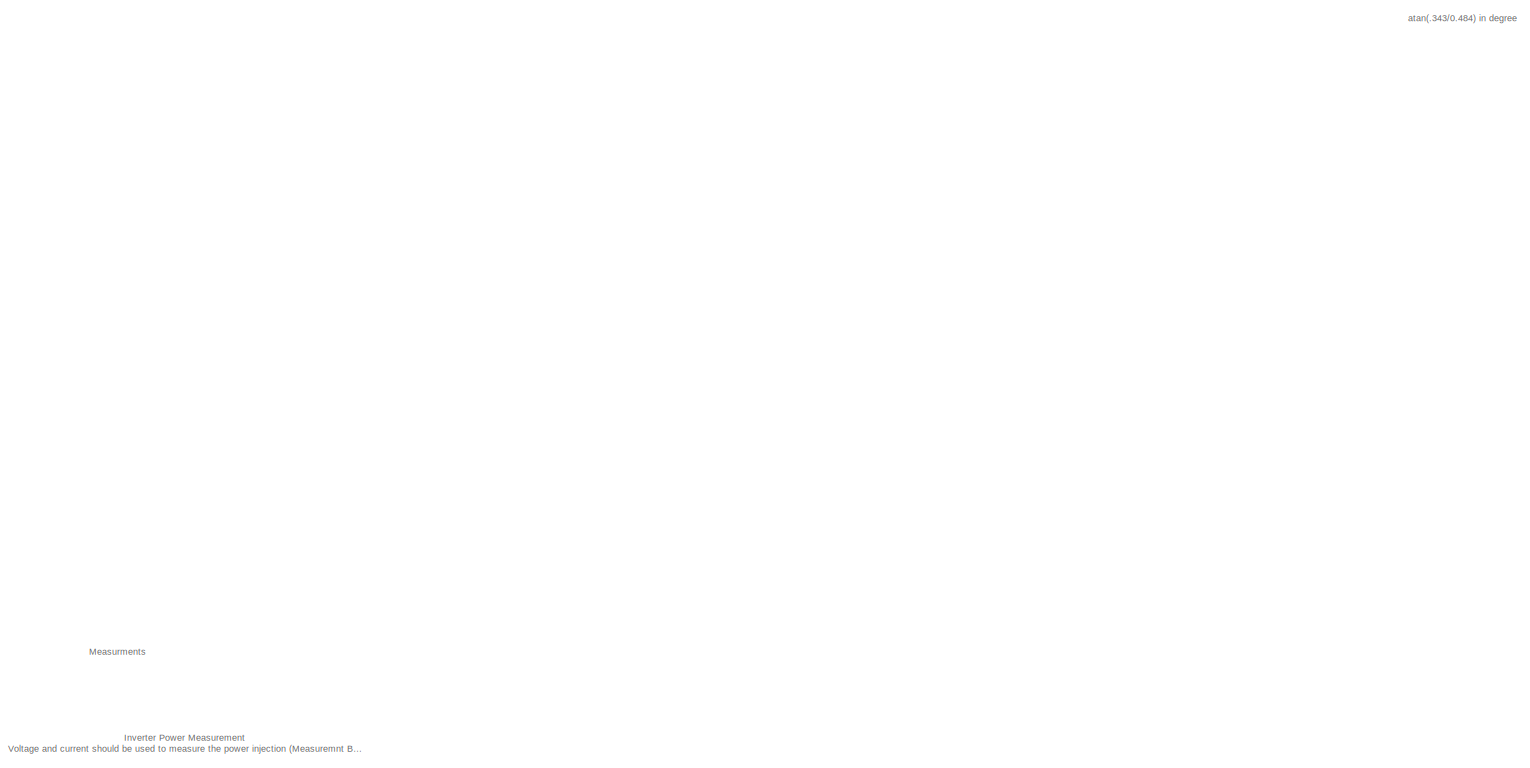
[diagram: root canvas - part 1/8, top center region]
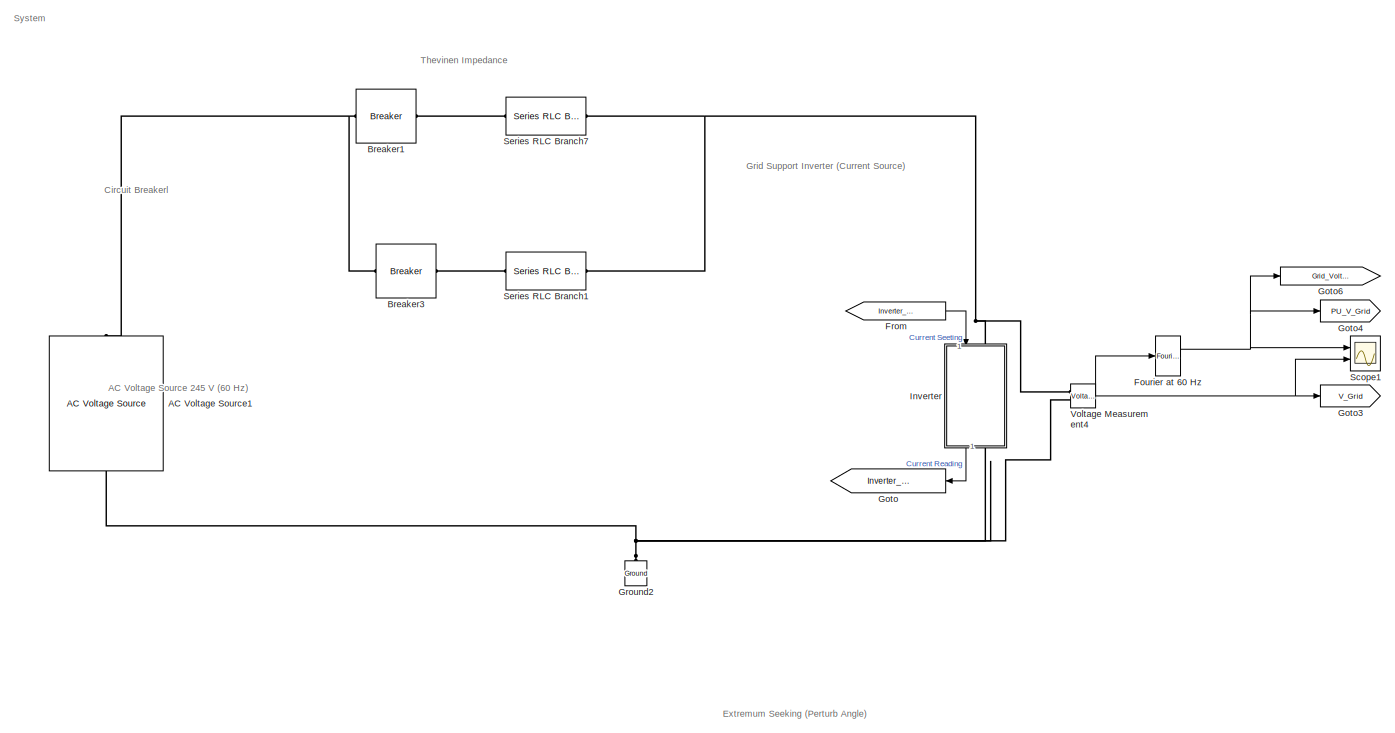
[diagram: root canvas - part 2/8, central region]
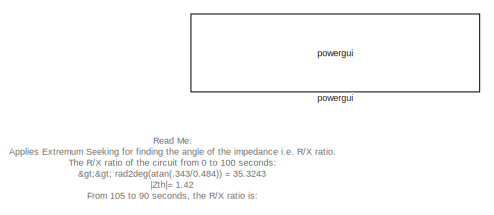
[diagram: root canvas - part 3/8, top left region]
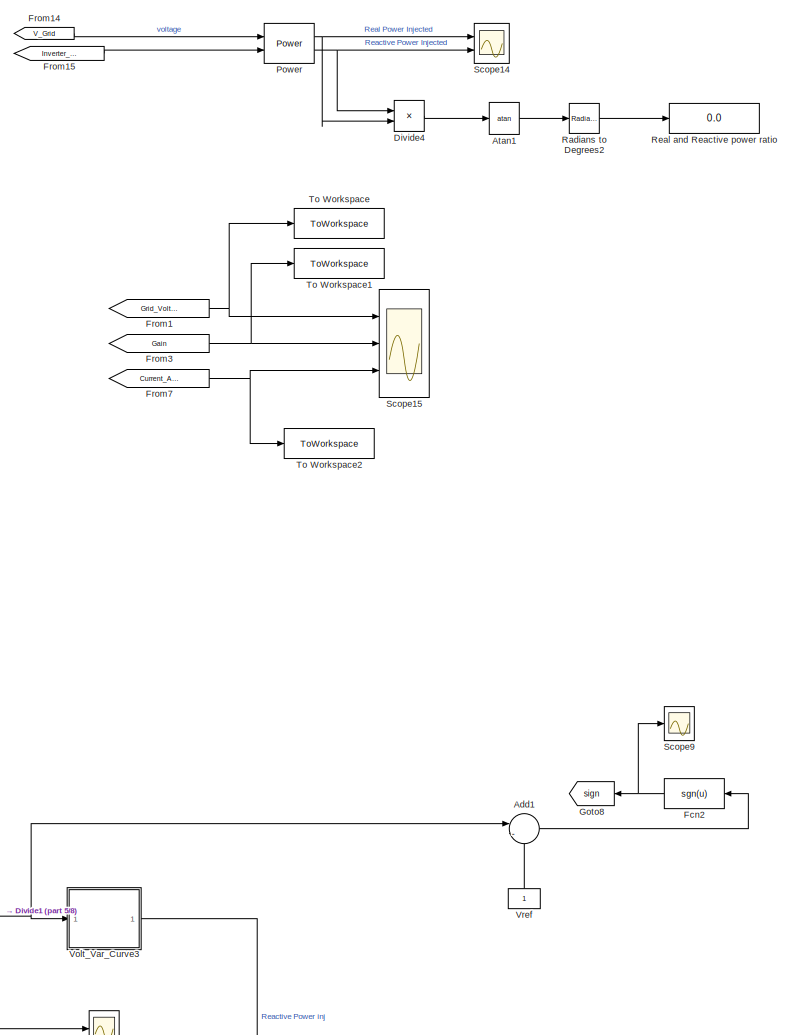
[diagram: root canvas - part 4/8, central region]
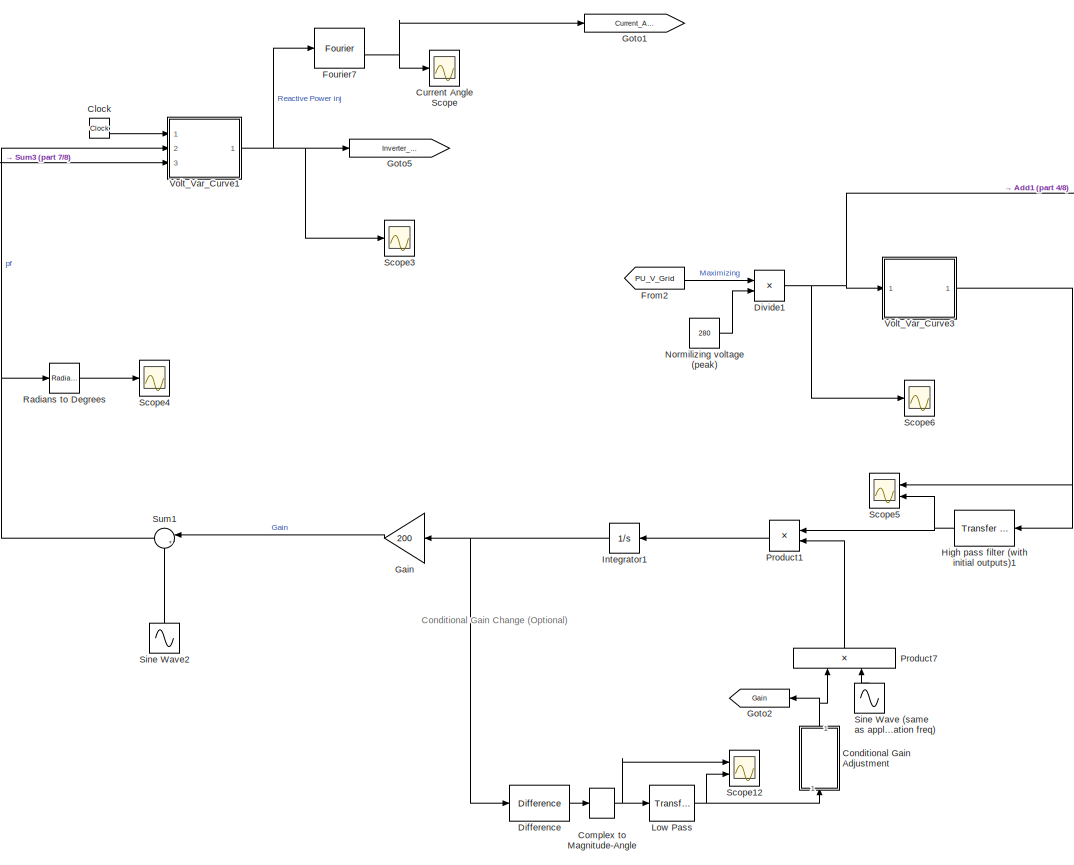
[diagram: root canvas - part 5/8, bottom center region]
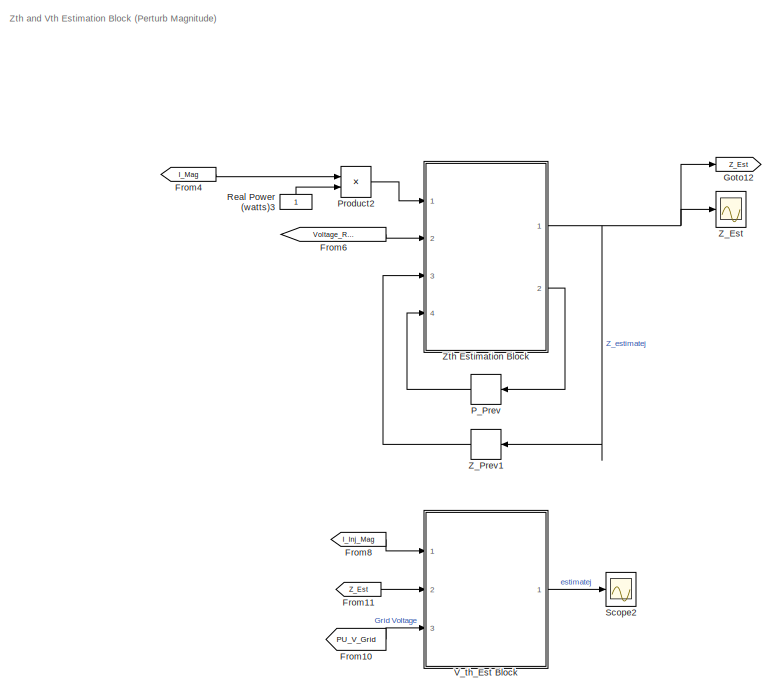
[diagram: root canvas - part 6/8, middle left region]
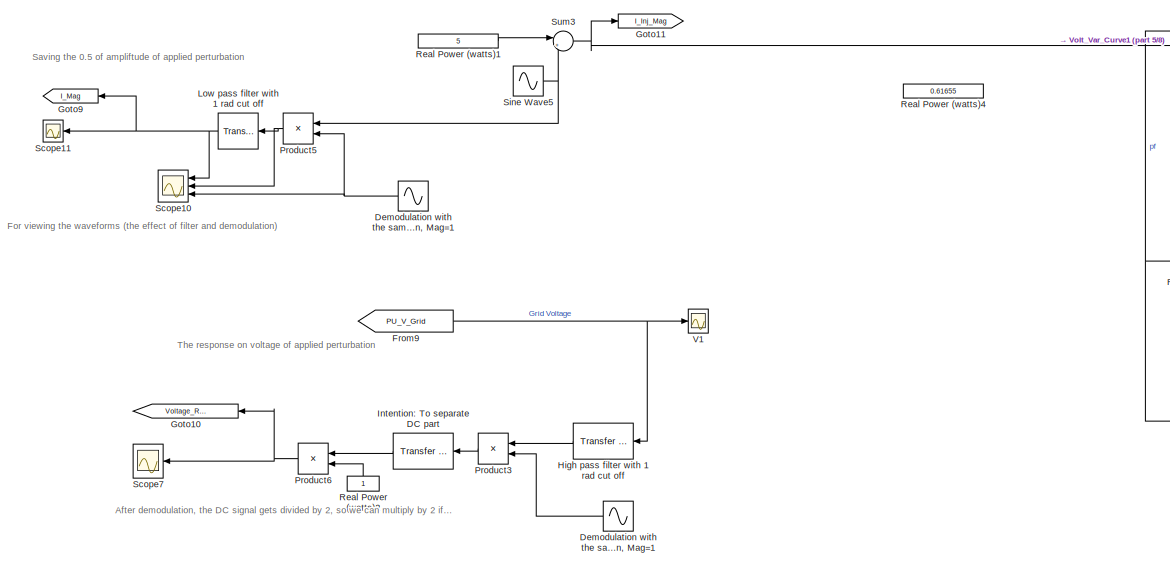
[diagram: root canvas - part 7/8, bottom left region]
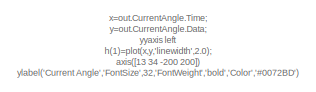
[diagram: root canvas - part 8/8, bottom right region]
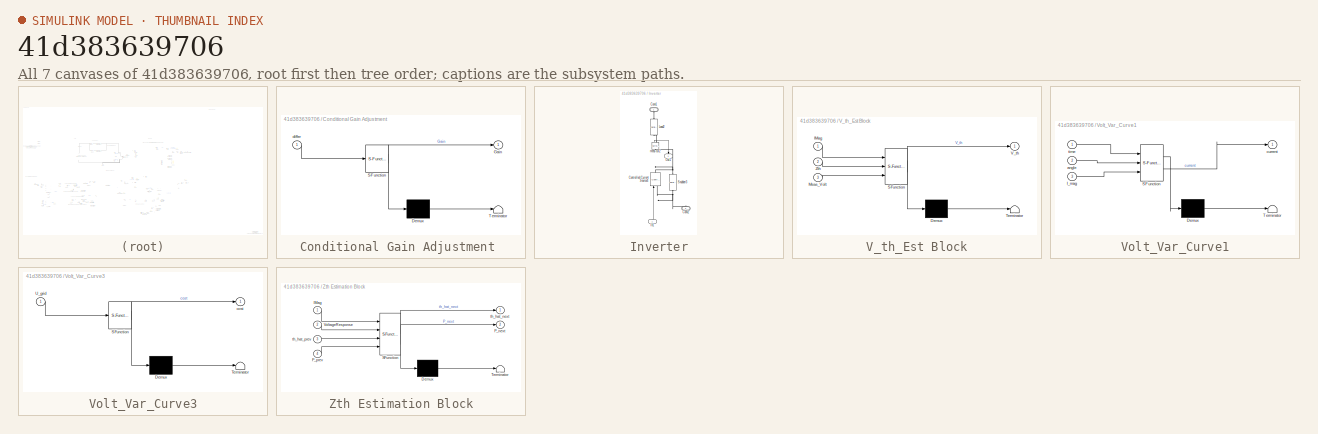
[diagram: thumbnail index - all 7 canvases of the model, root first then tree order]
MODEL slx_41d383639706
KIND model
CONFIG AbsTol = auto
CONFIG EnableMultiTasking = off
CONFIG FixedStep = 0.01
CONFIG MaxStep = 1
CONFIG MinStep = auto
CONFIG RelTol = 1e-4
CONFIG SampleTimeConstraint = Unconstrained
CONFIG SolverName = VariableStepAuto
CONFIG StartTime = 0.0
CONFIG StopTime = 300
BLOCK [Reference]  Intention: To separate DC part  REF=simulink_extras/Additional
Linear/Transfer Fcn
(with initial outputs)
  NameLocation = top
  Ports = [1, 1]
  SourceBlock = simulink_extras/Additional\nLinear/Transfer Fcn\n(with initial outputs)
  SourceProductBaseCode = SL
  SourceType = Transfer Function with Initial Outputs
BLOCK [Reference] AC Voltage Source1  REF=spsACVoltageSourceLib/AC Voltage Source
  Ports = [0, 0, 0, 0, 0, 1, 1]
  SourceBlock = spsACVoltageSourceLib/AC Voltage Source
  SourceProductBaseCode = PS
  SourceType = AC Voltage Source
BLOCK [Sum] Add1
  Inputs = |-+
  Ports = [2, 1]
BLOCK [Trigonometry] Atan1
  Operator = atan
  Ports = [1, 1]
BLOCK [Reference] Breaker1  REF=spsBreakerLib/Breaker
  Ports = [0, 0, 0, 0, 0, 1, 1]
  SourceBlock = spsBreakerLib/Breaker
  SourceProductBaseCode = PS
  SourceType = Breaker
BLOCK [Reference] Breaker3  REF=spsBreakerLib/Breaker
  Ports = [0, 0, 0, 0, 0, 1, 1]
  SourceBlock = spsBreakerLib/Breaker
  SourceProductBaseCode = PS
  SourceType = Breaker
BLOCK [Clock] Clock
BLOCK [ComplexToMagnitudeAngle] Complex to Magnitude-Angle
  Output = Magnitude
  Ports = [1, 1]
BLOCK [SubSystem] Conditional Gain Adjustment 
  ErrorFcn = Stateflow.Translate.translate
  NameLocation = right
  PermitHierarchicalResolution = ExplicitOnly
  Ports = [1, 1]
  RequestExecContextInheritance = off
  SFBlockType = MATLAB Function
  TreatAsAtomicUnit = on
BLOCK [Demux] Conditional Gain Adjustment / Demux 
  Outputs = 1
  Ports = [1, 1]
BLOCK [S-Function] Conditional Gain Adjustment / SFunction 
  EnableBusSupport = on
  FunctionName = sf_sfun
  PortCounts = [1 2]
  Ports = [1, 2]
  SFcnIsStateOwnerBlock = off
  SFunctionDeploymentMode = off
  Tag = Stateflow S-Function 3
BLOCK [Terminator] Conditional Gain Adjustment / Terminator 
BLOCK [Outport] Conditional Gain Adjustment /Gain
BLOCK [Inport] Conditional Gain Adjustment /differ
BLOCK [Scope] Current Angle Scope
  Floating = off
  NumInputPorts = 1
  Ports = [1]
  ScopeSpecificationString = Simulink.scopes.TimeScopeBlockCfg('CurrentConfiguration', extmgr.ConfigurationSet(extmgr.Configuration('Core','General UI',true),extmgr.Configuration('Core','Source UI',true),extmgr.Configuration('Sources','WiredSimulink',true,'DataLoggingVariableName','ScopeData1'),extmgr.Configuration('Visuals','Time Domain',true,'SerializedDisplays',{struct('MinYLimReal','-65.92612','MaxYLimReal','16.86496','YL...<+1843ch>
BLOCK [Sin] Demodulation with the same signal as applied parturbation, Mag=1
  Frequency = 10
  NameLocation = top
  Ports = [0, 1]
  SampleTime = 0
BLOCK [Sin] Demodulation with the same signal as applied parturbation, Mag=1 
  Frequency = 10
  NameLocation = top
  Ports = [0, 1]
  SampleTime = 0
BLOCK [Reference] Difference  REF=simulink/Discrete/Difference
  Ports = [1, 1]
  SourceBlock = simulink/Discrete/Difference
  SourceProductBaseCode = SL
  SourceType = Difference
BLOCK [Product] Divide1
  Inputs = */
  Ports = [2, 1]
BLOCK [Product] Divide4
  Inputs = */
  Ports = [2, 1]
BLOCK [Fcn] Fcn2
  Expr = sgn(u)
  NameLocation = top
BLOCK [Reference] Fourier at 60 Hz  REF=spsFourierLib/Fourier
  Ports = [1, 2]
  SourceBlock = spsFourierLib/Fourier
  SourceProductBaseCode = PS
  SourceType = Fourier
BLOCK [Reference] Fourier7  REF=spsFourierLib/Fourier
  Ports = [1, 2]
  SourceBlock = spsFourierLib/Fourier
  SourceProductBaseCode = PS
  SourceType = Fourier
BLOCK [From] From
  GotoTag = Inverter_Current
  TagVisibility = global
BLOCK [From] From1
  GotoTag = Grid_Voltage
  TagVisibility = global
BLOCK [From] From10
  GotoTag = PU_V_Grid
BLOCK [From] From11
  GotoTag = Z_Est
BLOCK [From] From14
  GotoTag = V_Grid
BLOCK [From] From15
  GotoTag = Inverter_read
BLOCK [From] From2
  GotoTag = PU_V_Grid
BLOCK [From] From3
  GotoTag = Gain
  NameLocation = top
  TagVisibility = global
BLOCK [From] From4
  GotoTag = I_Mag
  NameLocation = top
BLOCK [From] From6
  GotoTag = Voltage_Response
  NameLocation = top
BLOCK [From] From7
  GotoTag = Current_Angle
  TagVisibility = global
BLOCK [From] From8
  GotoTag = I_Inj_Mag
  NameLocation = top
BLOCK [From] From9
  GotoTag = PU_V_Grid
BLOCK [Gain] Gain
  Gain = 200
  NameLocation = top
BLOCK [Goto] Goto
  GotoTag = Inverter_read
  NameLocation = top
BLOCK [Goto] Goto1
  GotoTag = Current_Angle
  TagVisibility = global
BLOCK [Goto] Goto10
  GotoTag = Voltage_Response
  NameLocation = top
BLOCK [Goto] Goto11
  GotoTag = I_Inj_Mag
BLOCK [Goto] Goto12
  GotoTag = Z_Est
BLOCK [Goto] Goto2
  GotoTag = Gain
  NameLocation = top
  TagVisibility = global
BLOCK [Goto] Goto3
  GotoTag = V_Grid
BLOCK [Goto] Goto4
  GotoTag = PU_V_Grid
BLOCK [Goto] Goto5
  GotoTag = Inverter_Current
  TagVisibility = global
BLOCK [Goto] Goto6
  GotoTag = Grid_Voltage
  TagVisibility = global
BLOCK [Goto] Goto8
  GotoTag = sign
  TagVisibility = global
BLOCK [Goto] Goto9
  GotoTag = I_Mag
  NameLocation = top
BLOCK [Reference] Ground2  REF=spsGroundLib/Ground
  NameLocation = right
  Ports = [0, 0, 0, 0, 0, 1]
  SourceBlock = spsGroundLib/Ground
  SourceProductBaseCode = PS
  SourceType = Ground
BLOCK [Reference] High pass filter (with initial outputs)1  REF=simulink_extras/Additional
Linear/Transfer Fcn
(with initial outputs)
  NameLocation = top
  Ports = [1, 1]
  SourceBlock = simulink_extras/Additional\nLinear/Transfer Fcn\n(with initial outputs)
  SourceProductBaseCode = SL
  SourceType = Transfer Function with Initial Outputs
BLOCK [Reference] High pass filter with 1 rad cut off  REF=simulink_extras/Additional
Linear/Transfer Fcn
(with initial outputs)
  NameLocation = top
  Ports = [1, 1]
  SourceBlock = simulink_extras/Additional\nLinear/Transfer Fcn\n(with initial outputs)
  SourceProductBaseCode = SL
  SourceType = Transfer Function with Initial Outputs
BLOCK [Integrator] Integrator1
  NameLocation = top
  Ports = [1, 1]
BLOCK [SubSystem] Inverter
  NameLocation = right
  Ports = [1, 1, 0, 0, 0, 1, 1]
  RequestExecContextInheritance = off
BLOCK [PMIOPort] Inverter/Conn1
  NameLocation = right
  Side = Left
BLOCK [PMIOPort] Inverter/Conn2
  NameLocation = right
  Port = 2
  Side = Right
BLOCK [Reference] Inverter/Controlled Current Source4  REF=spsControlledCurrentSourceLib/Controlled Current Source
  NameLocation = right
  Ports = [1, 0, 0, 0, 0, 1, 1]
  SourceBlock = spsControlledCurrentSourceLib/Controlled Current Source
  SourceProductBaseCode = PS
  SourceType = Controlled Current Source
BLOCK [Inport] Inverter/In1
  NameLocation = right
BLOCK [Reference] Inverter/Load2  REF=spsSeriesRLCBranchLib/Series RLC Branch
  NameLocation = right
  Ports = [0, 0, 0, 0, 0, 1, 1]
  SourceBlock = spsSeriesRLCBranchLib/Series RLC Branch
  SourceProductBaseCode = PS
  SourceType = Series RLC Branch
BLOCK [Outport] Inverter/Out1
  NameLocation = right
BLOCK [Reference] Inverter/Snubber3  REF=spsSeriesRLCBranchLib/Series RLC Branch
  NameLocation = right
  Ports = [0, 0, 0, 0, 0, 1, 1]
  SourceBlock = spsSeriesRLCBranchLib/Series RLC Branch
  SourceProductBaseCode = PS
  SourceType = Series RLC Branch
BLOCK [Reference] Inverter/meas cur2  REF=spsCurrentMeasurementLib/Current Measurement
  NameLocation = left
  Ports = [0, 1, 0, 0, 0, 1, 1]
  SourceBlock = spsCurrentMeasurementLib/Current Measurement
  SourceProductBaseCode = PS
  SourceType = Current Measurement
BLOCK [Reference] Low Pass  REF=simulink_extras/Additional
Linear/Transfer Fcn
(with initial outputs)
  Ports = [1, 1]
  SourceBlock = simulink_extras/Additional\nLinear/Transfer Fcn\n(with initial outputs)
  SourceProductBaseCode = SL
  SourceType = Transfer Function with Initial Outputs
BLOCK [Reference] Low pass filter with 1 rad cut off  REF=simulink_extras/Additional
Linear/Transfer Fcn
(with initial outputs)
  NameLocation = top
  Ports = [1, 1]
  SourceBlock = simulink_extras/Additional\nLinear/Transfer Fcn\n(with initial outputs)
  SourceProductBaseCode = SL
  SourceType = Transfer Function with Initial Outputs
BLOCK [Constant] Normilizing voltage (peak)
  Value = 280
BLOCK [Memory] P_Prev
  InitialCondition = 0.1
  NameLocation = top
BLOCK [Reference] Power  REF=spsPowerLib/Power
  Ports = [2, 2]
  SourceBlock = spsPowerLib/Power
  SourceProductBaseCode = PS
  SourceType = Power
BLOCK [Product] Product1
  NameLocation = top
  Ports = [2, 1]
BLOCK [Product] Product2
  Ports = [2, 1]
BLOCK [Product] Product3
  NameLocation = top
  Ports = [2, 1]
BLOCK [Product] Product5
  NameLocation = top
  Ports = [2, 1]
BLOCK [Product] Product6
  NameLocation = top
  Ports = [2, 1]
BLOCK [Product] Product7
  NameLocation = right
  Ports = [2, 1]
BLOCK [Reference] Radians to Degrees  REF=simulink_extras/Transformations/Radians
to Degrees
  Ports = [1, 1]
  SourceBlock = simulink_extras/Transformations/Radians\nto Degrees
  SourceProductBaseCode = SL
  SourceType = RadiansToDegrees
BLOCK [Reference] Radians to Degrees2  REF=simulink_extras/Transformations/Radians
to Degrees
  Ports = [1, 1]
  SourceBlock = simulink_extras/Transformations/Radians\nto Degrees
  SourceProductBaseCode = SL
  SourceType = RadiansToDegrees
BLOCK [Constant] Real Power (watts)1
  NameLocation = top
  Value = 5
BLOCK [Constant] Real Power (watts)2
  NameLocation = left
BLOCK [Constant] Real Power (watts)3
  NameLocation = left
BLOCK [Constant] Real Power (watts)4
  NameLocation = top
  Value = 0.61655
BLOCK [Display] Real and Reactive power ratio 
  Decimation = 1
  Ports = [1]
BLOCK [Scope] Scope1
  Floating = off
  NumInputPorts = 2
  Ports = [2]
  ScopeSpecificationString = Simulink.scopes.TimeScopeBlockCfg('CurrentConfiguration', extmgr.ConfigurationSet(extmgr.Configuration('Core','General UI',true),extmgr.Configuration('Core','Source UI',true),extmgr.Configuration('Sources','WiredSimulink',true,'DataLoggingVariableName','ScopeData2'),extmgr.Configuration('Visuals','Time Domain',true,'SerializedDisplays',{struct('MinYLimReal','-31.52921','MaxYLimReal','283.76287','Y...<+2068ch>
BLOCK [Scope] Scope10
  Floating = off
  NameLocation = top
  NumInputPorts = 3
  Ports = [3]
  ScopeSpecificationString = Simulink.scopes.TimeScopeBlockCfg('CurrentConfiguration', extmgr.ConfigurationSet(extmgr.Configuration('Core','General UI',true),extmgr.Configuration('Core','Source UI',true),extmgr.Configuration('Sources','WiredSimulink',true,'DataLoggingVariableName','ScopeData5'),extmgr.Configuration('Visuals','Time Domain',true,'SerializedDisplays',{struct('MinYLimReal','-1.25','MaxYLimReal','1.25','YLabelReal...<+1423ch>
BLOCK [Scope] Scope11
  Floating = off
  NameLocation = top
  NumInputPorts = 1
  Ports = [1]
  ScopeSpecificationString = Simulink.scopes.TimeScopeBlockCfg('CurrentConfiguration', extmgr.ConfigurationSet(extmgr.Configuration('Core','General UI',true),extmgr.Configuration('Core','Source UI',true),extmgr.Configuration('Sources','WiredSimulink',true,'DataLoggingVariableName','IMag','DataLogging',true,'DataLoggingSaveFormat','StructureWithTime'),extmgr.Configuration('Visuals','Time Domain',true,'SerializedDisplays',{stru...<+1531ch>
BLOCK [Scope] Scope12
  Floating = off
  NumInputPorts = 2
  Ports = [2]
  ScopeSpecificationString = Simulink.scopes.TimeScopeBlockCfg('CurrentConfiguration', extmgr.ConfigurationSet(extmgr.Configuration('Core','General UI',true),extmgr.Configuration('Core','Source UI',true),extmgr.Configuration('Sources','WiredSimulink',true,'DataLoggingVariableName','ScopeData4'),extmgr.Configuration('Visuals','Time Domain',true,'SerializedDisplays',{struct('MinYLimReal','-0.02547','MaxYLimReal','0.22926','YLab...<+2044ch>
BLOCK [Scope] Scope14
  Floating = off
  NumInputPorts = 2
  Ports = [2]
  ScopeSpecificationString = Simulink.scopes.TimeScopeBlockCfg('CurrentConfiguration', extmgr.ConfigurationSet(extmgr.Configuration('Core','General UI',true),extmgr.Configuration('Core','Source UI',true),extmgr.Configuration('Sources','WiredSimulink',true,'DataLoggingVariableName','ScopeData13'),extmgr.Configuration('Visuals','Time Domain',true,'SerializedDisplays',{struct('MinYLimReal','-773.11191','MaxYLimReal','787.54432',...<+2195ch>
BLOCK [Scope] Scope15
  Floating = off
  NumInputPorts = 3
  Ports = [3]
  ScopeSpecificationString = Simulink.scopes.TimeScopeBlockCfg('CurrentConfiguration', extmgr.ConfigurationSet(extmgr.Configuration('Core','General UI',true),extmgr.Configuration('Core','Source UI',true),extmgr.Configuration('Sources','WiredSimulink',true,'DataLoggingVariableName','ScopeData1'),extmgr.Configuration('Visuals','Time Domain',true,'SerializedDisplays',{struct('MinYLimReal','235.08047','MaxYLimReal','260.00467','Y...<+2747ch>
BLOCK [Scope] Scope2
  Floating = off
  NumInputPorts = 1
  Ports = [1]
  ScopeSpecificationString = Simulink.scopes.TimeScopeBlockCfg('CurrentConfiguration', extmgr.ConfigurationSet(extmgr.Configuration('Core','General UI',true),extmgr.Configuration('Core','Source UI',true),extmgr.Configuration('Sources','WiredSimulink',true,'DataLoggingVariableName','ScopeData1','DataLogging',true,'DataLoggingSaveFormat','StructureWithTime'),extmgr.Configuration('Visuals','Time Domain',true,'SerializedDisplays'...<+1870ch>
BLOCK [Scope] Scope3
  Floating = off
  NumInputPorts = 1
  Ports = [1]
  ScopeSpecificationString = Simulink.scopes.TimeScopeBlockCfg('CurrentConfiguration', extmgr.ConfigurationSet(extmgr.Configuration('Core','General UI',true),extmgr.Configuration('Core','Source UI',true),extmgr.Configuration('Sources','WiredSimulink',true,'DataLoggingVariableName','ScopeData4'),extmgr.Configuration('Visuals','Time Domain',true,'SerializedDisplays',{struct('MinYLimReal','-17.5157','MaxYLimReal','17.58763','YLa...<+1482ch>
BLOCK [Scope] Scope4
  Floating = off
  NumInputPorts = 1
  Ports = [1]
  ScopeSpecificationString = Simulink.scopes.TimeScopeBlockCfg('CurrentConfiguration', extmgr.ConfigurationSet(extmgr.Configuration('Core','General UI',true),extmgr.Configuration('Core','Source UI',true),extmgr.Configuration('Sources','WiredSimulink',true,'DataLoggingVariableName','ScopeData1'),extmgr.Configuration('Visuals','Time Domain',true,'SerializedDisplays',{struct('MinYLimReal','-526.89981','MaxYLimReal','4742.09827',...<+1497ch>
BLOCK [Scope] Scope5
  Floating = off
  NameLocation = top
  NumInputPorts = 2
  Ports = [2]
  ScopeSpecificationString = Simulink.scopes.TimeScopeBlockCfg('CurrentConfiguration', extmgr.ConfigurationSet(extmgr.Configuration('Core','General UI',true),extmgr.Configuration('Core','Source UI',true),extmgr.Configuration('Sources','WiredSimulink',true,'DataLoggingVariableName','ScopeData1'),extmgr.Configuration('Visuals','Time Domain',true,'SerializedDisplays',{struct('MinYLimReal','0.87803','MaxYLimReal','0.91181','YLabe...<+2158ch>
BLOCK [Scope] Scope6
  Floating = off
  NumInputPorts = 1
  Ports = [1]
  ScopeSpecificationString = Simulink.scopes.TimeScopeBlockCfg('CurrentConfiguration', extmgr.ConfigurationSet(extmgr.Configuration('Core','General UI',true),extmgr.Configuration('Core','Source UI',true),extmgr.Configuration('Sources','WiredSimulink',true,'DataLoggingVariableName','ScopeData1'),extmgr.Configuration('Visuals','Time Domain',true,'SerializedDisplays',{struct('MinYLimReal','-526.89981','MaxYLimReal','4742.09827',...<+1497ch>
BLOCK [Scope] Scope7
  Floating = off
  NameLocation = top
  NumInputPorts = 1
  Ports = [1]
  ScopeSpecificationString = Simulink.scopes.TimeScopeBlockCfg('CurrentConfiguration', extmgr.ConfigurationSet(extmgr.Configuration('Core','General UI',true),extmgr.Configuration('Core','Source UI',true),extmgr.Configuration('Sources','WiredSimulink',true,'DataLoggingVariableName','VoltageResponse','DataLogging',true,'DataLoggingSaveFormat','StructureWithTime'),extmgr.Configuration('Visuals','Time Domain',true,'SerializedDisp...<+1534ch>
BLOCK [Scope] Scope9
  Floating = off
  NumInputPorts = 1
  Ports = [1]
  ScopeSpecificationString = Simulink.scopes.TimeScopeBlockCfg('CurrentConfiguration', extmgr.ConfigurationSet(extmgr.Configuration('Core','General UI',true),extmgr.Configuration('Core','Source UI',true),extmgr.Configuration('Sources','WiredSimulink',true,'DataLoggingVariableName','ScopeData2'),extmgr.Configuration('Visuals','Time Domain',true,'SerializedDisplays',{struct('MinYLimReal','-1.1','MaxYLimReal','-0.9','YLabelReal'...<+1417ch>
BLOCK [Reference] Series RLC Branch1  REF=spsSeriesRLCBranchLib/Series RLC Branch
  Ports = [0, 0, 0, 0, 0, 1, 1]
  SourceBlock = spsSeriesRLCBranchLib/Series RLC Branch
  SourceProductBaseCode = PS
  SourceType = Series RLC Branch
BLOCK [Reference] Series RLC Branch7  REF=spsSeriesRLCBranchLib/Series RLC Branch
  Ports = [0, 0, 0, 0, 0, 1, 1]
  SourceBlock = spsSeriesRLCBranchLib/Series RLC Branch
  SourceProductBaseCode = PS
  SourceType = Series RLC Branch
BLOCK [Sin] Sine Wave (same as applied perturbation freq)
  Frequency = 5
  NameLocation = right
  Ports = [0, 1]
  SampleTime = 0
BLOCK [Sin] Sine Wave2
  Amplitude = 0.01
  Frequency = 5
  NameLocation = right
  Ports = [0, 1]
  SampleTime = 0
BLOCK [Sin] Sine Wave5
  Amplitude = 0.005
  Frequency = 10
  Ports = [0, 1]
  SampleTime = 0
BLOCK [Sum] Sum1
  Inputs = |++
  NameLocation = top
  Ports = [2, 1]
BLOCK [Sum] Sum3
  Inputs = |++
  Ports = [2, 1]
BLOCK [ToWorkspace] To Workspace
  FixptAsFi = on
  MaxDataPoints = inf
  Ports = [1]
  SampleTime = -1
  SaveFormat = Timeseries
  VariableName = voltage
BLOCK [ToWorkspace] To Workspace1
  FixptAsFi = on
  MaxDataPoints = inf
  Ports = [1]
  SampleTime = -1
  SaveFormat = Timeseries
  VariableName = Gain
BLOCK [ToWorkspace] To Workspace2
  FixptAsFi = on
  MaxDataPoints = inf
  Ports = [1]
  SampleTime = -1
  SaveFormat = Timeseries
  VariableName = CurrentAngle
BLOCK [Scope] V1
  Floating = off
  NumInputPorts = 1
  Ports = [1]
  ScopeSpecificationString = Simulink.scopes.TimeScopeBlockCfg('CurrentConfiguration', extmgr.ConfigurationSet(extmgr.Configuration('Core','General UI',true),extmgr.Configuration('Core','Source UI',true),extmgr.Configuration('Sources','WiredSimulink',true,'DataLoggingSaveFormat','StructureWithTime','DataLoggingDecimation','1','DataLoggingDecimateData',true,'DataLoggingVariableName','ScopeData7'),extmgr.Configuration('Visuals'...<+1656ch>
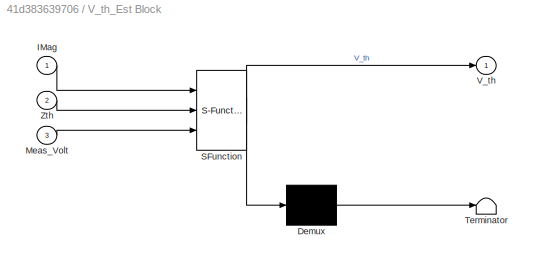
BLOCK [SubSystem] V_th_Est Block
  ErrorFcn = Stateflow.Translate.translate
  PermitHierarchicalResolution = ExplicitOnly
  Ports = [3, 1]
  RequestExecContextInheritance = off
  SFBlockType = MATLAB Function
  TreatAsAtomicUnit = on
BLOCK [Demux] V_th_Est Block/ Demux 
  Outputs = 1
  Ports = [1, 1]
BLOCK [S-Function] V_th_Est Block/ SFunction 
  EnableBusSupport = on
  FunctionName = sf_sfun
  PortCounts = [3 2]
  Ports = [3, 2]
  SFcnIsStateOwnerBlock = off
  SFunctionDeploymentMode = off
  Tag = Stateflow S-Function 5
BLOCK [Terminator] V_th_Est Block/ Terminator 
BLOCK [Inport] V_th_Est Block/IMag
BLOCK [Inport] V_th_Est Block/Meas_Volt
  Port = 3
BLOCK [Outport] V_th_Est Block/V_th
BLOCK [Inport] V_th_Est Block/Zth
  Port = 2
BLOCK [SubSystem] Volt_Var_Curve1
  ErrorFcn = Stateflow.Translate.translate
  PermitHierarchicalResolution = ExplicitOnly
  Ports = [3, 1]
  RequestExecContextInheritance = off
  SFBlockType = MATLAB Function
  TreatAsAtomicUnit = on
BLOCK [Demux] Volt_Var_Curve1/ Demux 
  Outputs = 1
  Ports = [1, 1]
BLOCK [S-Function] Volt_Var_Curve1/ SFunction 
  EnableBusSupport = on
  FunctionName = sf_sfun
  PortCounts = [3 2]
  Ports = [3, 2]
  SFcnIsStateOwnerBlock = off
  SFunctionDeploymentMode = off
  Tag = Stateflow S-Function 1
BLOCK [Terminator] Volt_Var_Curve1/ Terminator 
BLOCK [Inport] Volt_Var_Curve1/I_mag
  Port = 3
BLOCK [Inport] Volt_Var_Curve1/angle
  Port = 2
BLOCK [Outport] Volt_Var_Curve1/current
BLOCK [Inport] Volt_Var_Curve1/time
BLOCK [SubSystem] Volt_Var_Curve3
  ErrorFcn = Stateflow.Translate.translate
  PermitHierarchicalResolution = ExplicitOnly
  Ports = [1, 1]
  RequestExecContextInheritance = off
  SFBlockType = MATLAB Function
  TreatAsAtomicUnit = on
BLOCK [Demux] Volt_Var_Curve3/ Demux 
  Outputs = 1
  Ports = [1, 1]
BLOCK [S-Function] Volt_Var_Curve3/ SFunction 
  EnableBusSupport = on
  FunctionName = sf_sfun
  PortCounts = [1 2]
  Ports = [1, 2]
  SFcnIsStateOwnerBlock = off
  SFunctionDeploymentMode = off
  Tag = Stateflow S-Function 4
BLOCK [Terminator] Volt_Var_Curve3/ Terminator 
BLOCK [Inport] Volt_Var_Curve3/U_grid
BLOCK [Outport] Volt_Var_Curve3/cost
BLOCK [Reference] Voltage Measurement4  REF=spsVoltageMeasurementLib/Voltage Measurement
  Ports = [0, 1, 0, 0, 0, 2]
  SourceBlock = spsVoltageMeasurementLib/Voltage Measurement
  SourceProductBaseCode = PS
  SourceType = Voltage Measurement
BLOCK [Constant] Vref
  NameLocation = left
BLOCK [Scope] Z_Est
  Floating = off
  NumInputPorts = 1
  Ports = [1]
  ScopeSpecificationString = Simulink.scopes.TimeScopeBlockCfg('CurrentConfiguration', extmgr.ConfigurationSet(extmgr.Configuration('Core','General UI',true),extmgr.Configuration('Core','Source UI',true),extmgr.Configuration('Sources','WiredSimulink',true,'DataLoggingVariableName','ScopeData1'),extmgr.Configuration('Visuals','Time Domain',true,'SerializedDisplays',{struct('MinYLimReal','-48.46705','MaxYLimReal','23.38011','YL...<+1761ch>
BLOCK [Memory] Z_Prev1
  InitialCondition = 0.1
  NameLocation = top
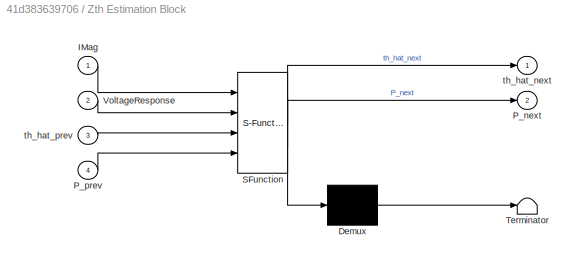
BLOCK [SubSystem] Zth Estimation Block
  ErrorFcn = Stateflow.Translate.translate
  PermitHierarchicalResolution = ExplicitOnly
  Ports = [4, 2]
  RequestExecContextInheritance = off
  SFBlockType = MATLAB Function
  TreatAsAtomicUnit = on
BLOCK [Demux] Zth Estimation Block/ Demux 
  Outputs = 1
  Ports = [1, 1]
BLOCK [S-Function] Zth Estimation Block/ SFunction 
  EnableBusSupport = on
  FunctionName = sf_sfun
  PortCounts = [4 3]
  Ports = [4, 3]
  SFcnIsStateOwnerBlock = off
  SFunctionDeploymentMode = off
  Tag = Stateflow S-Function 2
BLOCK [Terminator] Zth Estimation Block/ Terminator 
BLOCK [Inport] Zth Estimation Block/IMag
BLOCK [Outport] Zth Estimation Block/P_next
  Port = 2
BLOCK [Inport] Zth Estimation Block/P_prev
  Port = 4
BLOCK [Inport] Zth Estimation Block/VoltageResponse
  Port = 2
BLOCK [Outport] Zth Estimation Block/th_hat_next
BLOCK [Inport] Zth Estimation Block/th_hat_prev
  Port = 3
BLOCK [Reference] powergui  REF=spspowerguiLib/powergui
  Ports = []
  SourceBlock = spspowerguiLib/powergui
  SourceProductBaseCode = PS
  SourceType = PSB option menu block
ANNOTATION (root): x=out.CurrentAngle.Time; y=out.CurrentAngle.Data; yyaxis left h(1)=plot(x,y,'linewidth',2.0); axis([13 34 -200 200]) ylabel('Current Angle','FontSize',32,'FontWeight','bold','Color','#0072BD') ax = gca; ax.XGrid = 'off'; ax.YGrid = 'on'; ax.FontSize = 32; xticks([15 18 21 24 27 30 32]) yticks([ -180 -60 -30 0 180]) yyaxis right x=out.Gain.Time; y=out.Gain.Data; h(2)=plot(x,y,'linewidth',2.0); axis...<+234ch>
ANNOTATION (root): Inverter Power Measurement Voltage and current should be used to measure the power injection (Measuremnt Blocks are different here then phasor blocks)
ANNOTATION (root): Read Me: Applies Extremum Seeking for finding the angle of the impedance i.e. R/X ratio. The R/X ratio of the circuit from 0 to 100 seconds: >> rad2deg(atan(.343/0.484)) = 35.3243 |Zth|= 1.42 From 105 to 90 seconds, the R/X ratio is: >> rad2deg(atan(0.484/.343)) = 54.6757 |Zth|= 2.8 Viewing Results: - View the scope: Current Angle Scope - Read the measurement on display: Real and Reactive power ra...<+151ch>
ANNOTATION (root): AC Voltage Source 245 V (60 Hz)
ANNOTATION (root): After demodulation, the DC signal gets divided by 2, so we can multiply by 2 if needed (not needed here since input is also got divided by 2)
ANNOTATION (root): Circuit Breakerl
ANNOTATION (root): Conditional Gain Change (Optional)
ANNOTATION (root): Extremum Seeking (Perturb Angle)
ANNOTATION (root): For viewing the waveforms (the effect of filter and demodulation)
ANNOTATION (root): Grid Support Inverter (Current Source)
ANNOTATION (root): Measurments
ANNOTATION (root): Saving the 0.5 of ampliftude of applied perturbation
ANNOTATION (root): System
ANNOTATION (root): The response on voltage of applied perturbation
ANNOTATION (root): Thevinen Impedance
ANNOTATION (root): Zth and Vth Estimation Block (Perturb Magnitude)
ANNOTATION (root): atan(.343/0.484) in degree
LINE  Intention: To separate DC part:1 -> Product6:1
LINE Add1:1 -> Fcn2:1
LINE Atan1:1 -> Radians to Degrees2:1
LINE Clock:1 -> Volt_Var_Curve1:1
NET Complex to Magnitude-Angle:1 -> Low Pass:1, Scope12:1
NET Conditional Gain Adjustment :1 -> Goto2:1, Product7:1
LINE Demodulation with the same signal as applied parturbation, Mag=1 :1 -> Product3:2
NET Demodulation with the same signal as applied parturbation, Mag=1:1 -> Product5:2, Scope10:3
LINE Difference:1 -> Complex to Magnitude-Angle:1
NET Divide1:1 -> Add1:1, Scope6:1, Volt_Var_Curve3:1
LINE Divide4:1 -> Atan1:1
NET Fcn2:1 -> Goto8:1, Scope9:1
NET Fourier at 60 Hz:1 -> Goto4:1, Goto6:1, Scope1:1
NET Fourier7:2 -> Current Angle Scope:1, Goto1:1
LINE From10:1 -> V_th_Est Block:3
LINE From11:1 -> V_th_Est Block:2
LINE From14:1 -> Power:1
LINE From15:1 -> Power:2
NET From1:1 -> Scope15:1, To Workspace:1
LINE From2:1 -> Divide1:1
NET From3:1 -> Scope15:2, To Workspace1:1
LINE From4:1 -> Product2:1
LINE From6:1 -> Zth Estimation Block:2
NET From7:1 -> Scope15:3, To Workspace2:1
LINE From8:1 -> V_th_Est Block:1
NET From9:1 -> High pass filter with 1 rad cut off:1, V1:1
LINE From:1 -> Inverter:1
LINE Gain:1 -> Sum1:1
NET High pass filter (with initial outputs)1:1 -> Product1:1, Scope5:2
LINE High pass filter with 1 rad cut off:1 -> Product3:1
NET Integrator1:1 -> Difference:1, Gain:1
LINE Inverter/In1:1 -> Inverter/Controlled Current Source4:1
LINE Inverter/meas cur2:1 -> Inverter/Out1:1
LINE Inverter:1 -> Goto:1
NET Low Pass:1 -> Conditional Gain Adjustment :1, Scope12:2
NET Low pass filter with 1 rad cut off:1 -> Goto9:1, Scope10:1, Scope11:1
LINE Normilizing voltage (peak):1 -> Divide1:2
LINE P_Prev:1 -> Zth Estimation Block:4
NET Power:1 -> Divide4:2, Scope14:1
NET Power:2 -> Divide4:1, Scope14:2
LINE Product1:1 -> Integrator1:1
LINE Product2:1 -> Zth Estimation Block:1
LINE Product3:1 ->  Intention: To separate DC part:1
NET Product5:1 -> Low pass filter with 1 rad cut off:1, Scope10:2
NET Product6:1 -> Goto10:1, Scope7:1
LINE Product7:1 -> Product1:2
LINE Radians to Degrees2:1 -> Real and Reactive power ratio :1
LINE Radians to Degrees:1 -> Scope4:1
LINE Real Power (watts)1:1 -> Sum3:1
LINE Real Power (watts)2:1 -> Product6:2
LINE Real Power (watts)3:1 -> Product2:2
LINE Sine Wave (same as applied perturbation freq):1 -> Product7:2
LINE Sine Wave2:1 -> Sum1:2
NET Sine Wave5:1 -> Product5:1, Sum3:2
NET Sum1:1 -> Radians to Degrees:1, Volt_Var_Curve1:2
NET Sum3:1 -> Goto11:1, Volt_Var_Curve1:3
LINE V_th_Est Block:1 -> Scope2:1
NET Volt_Var_Curve1:1 -> Fourier7:1, Goto5:1, Scope3:1
NET Volt_Var_Curve3:1 -> High pass filter (with initial outputs)1:1, Scope5:1
NET Voltage Measurement4:1 -> Fourier at 60 Hz:1, Goto3:1, Scope1:2
LINE Vref:1 -> Add1:2
LINE Z_Prev1:1 -> Zth Estimation Block:3
NET Zth Estimation Block:1 -> Goto12:1, Z_Est:1, Z_Prev1:1
LINE Zth Estimation Block:2 -> P_Prev:1
PNET net1: AC Voltage Source1:LConn1 -- Ground2:LConn1 -- Inverter:RConn1 -- Voltage Measurement4:LConn2
PNET net2: AC Voltage Source1:RConn1 -- Breaker1:LConn1 -- Breaker3:LConn1
PLINE Breaker1:RConn1 -- Series RLC Branch7:LConn1
PLINE Breaker3:RConn1 -- Series RLC Branch1:LConn1
PLINE Inverter/Conn1:RConn1 -- Inverter/Load2:LConn1
PNET net3: Inverter/Conn2:RConn1 -- Inverter/Controlled Current Source4:LConn1 -- Inverter/Snubber3:RConn1
PNET net4: Inverter/Controlled Current Source4:RConn1 -- Inverter/Snubber3:LConn1 -- Inverter/meas cur2:LConn1
PLINE Inverter/Load2:RConn1 -- Inverter/meas cur2:RConn1
PNET net5: Inverter:LConn1 -- Series RLC Branch1:RConn1 -- Series RLC Branch7:RConn1 -- Voltage Measurement4:LConn1
note: NET lines group one-source signal fan-out (src -> all destinations, sorted); 1:1 wires keep LINE; PNET lines group multi-terminal physical nets as a canonical sorted terminal list (undirected conserving connections); 2-terminal nets keep the pairwise PLINE form
CHART Volt_Var_Curve1 states=1 transitions=1
  STATE_LABEL 'eML_blk_kernel()'
  STATE_LABEL 'SCRIPT:\nfunction current = fcn(time,angle,I_mag)\n\ncurrent= I_mag*sin(2*pi*60*time - angle); \n\n'
CHART Zth Estimation Block states=1 transitions=1
  STATE_LABEL 'eML_blk_kernel()'
  STATE_LABEL 'SCRIPT:\n\nfunction [th_hat_next, P_next] = SimulinkEstimateOnline(IMag, VoltageResponse,th_hat_prev, P_prev)\n    % Apply low pass filter\n    Isinthe = IMag.^1; % Assuming IMag is scalar\n\n    % Correct for high pass filter degain\n    z = VoltageResponse * 1.005; % Assuming VoltageResponse is scalar % correcting filter attenuation\n\n    % Check if initial state is provided, otherwise initialize\n    if...<+548ch>'
CHART Conditional Gain Adjustment  states=1 transitions=1
  STATE_LABEL 'eML_blk_kernel()'
  STATE_LABEL 'SCRIPT:\nfunction Gain = fcn(differ)\n\nif (differ < 10e-8)\n    Gain=8;\nelse\n    Gain=1;\nend'
CHART Volt_Var_Curve3 states=1 transitions=1
  STATE_LABEL 'eML_blk_kernel()'
  STATE_LABEL 'SCRIPT:\nfunction cost = fcn(U_grid)\n\ncost= (U_grid);\n\n'
CHART V_th_Est Block states=1 transitions=1
  STATE_LABEL 'eML_blk_kernel()'
  STATE_LABEL 'SCRIPT:\n\nfunction V_th = SimulinkEstimateOnline(IMag, Zth, Meas_Volt)\n    V_th = abs(Meas_Volt)- abs(IMag)* abs(Zth);\nend'
CHART  states=0 transitions=0
CHART  states=0 transitions=0
CHART  states=0 transitions=0
CHART  states=0 transitions=0
CHART  states=0 transitions=0
